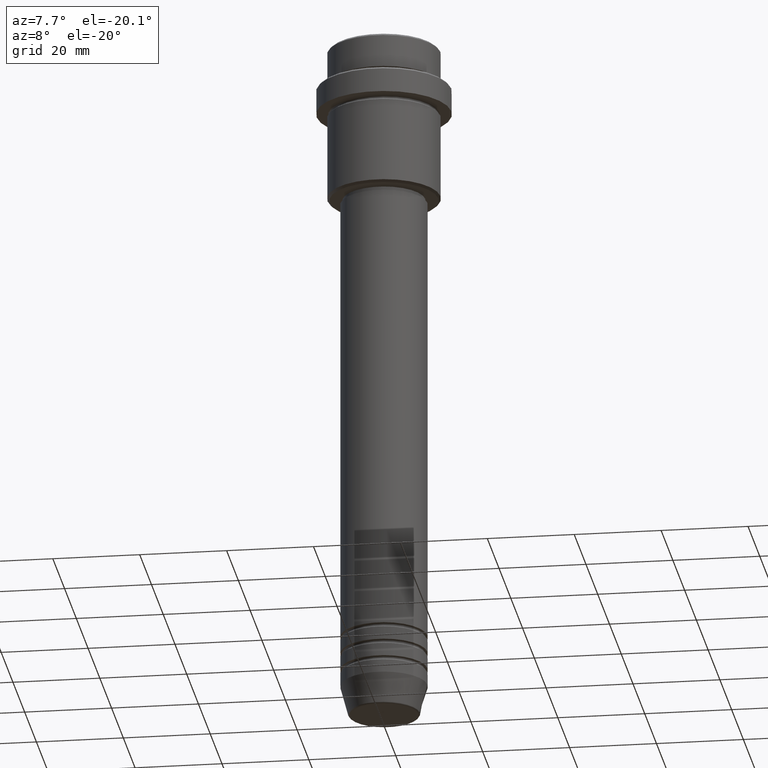
[diagram: clean part render]
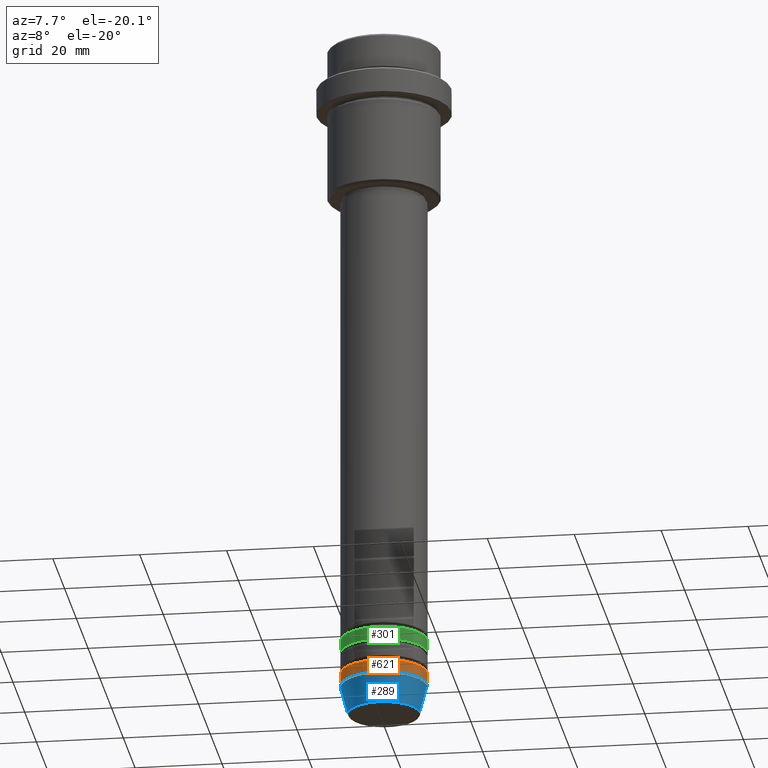
[diagram: same view with three faces highlighted in distinct colors, each labeled with its STEP entity id]
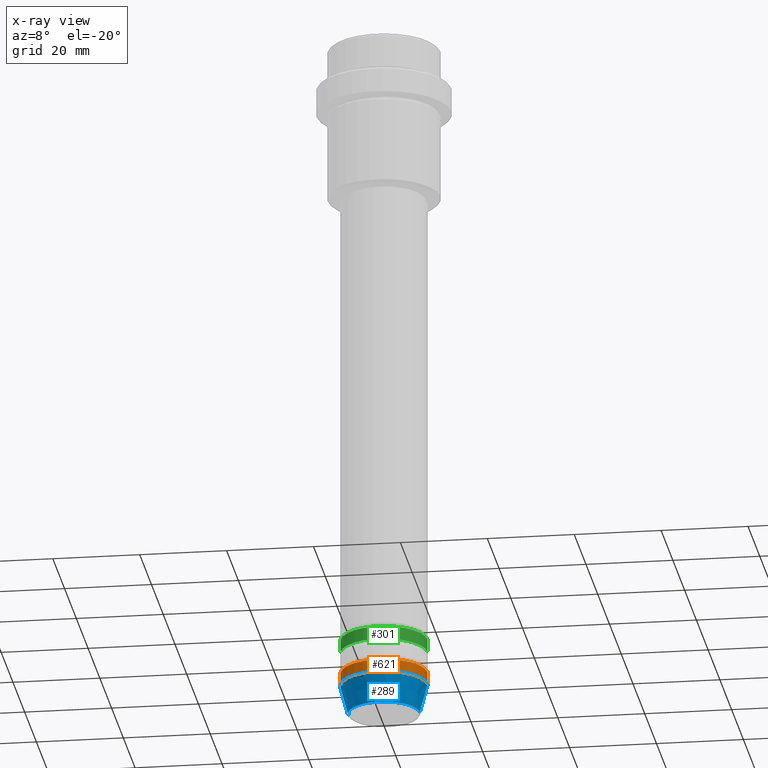
[diagram: x-ray of the same camera — body ghosted, the three highlighted faces saturated]
A machine part, auxiliary view with three faces highlighted in distinct colors.
The next image is the same camera in x-ray (body ghosted, the three faces saturated) — at least one of them is partly hidden behind the body in this view.
Their STEP definitions:

[orange] entity #621 — the highlighted cylindrical surface (partial cylindrical patch) has radius 10 mm, axis along (-0, -0, 1).
#17 = EDGE_CURVE ( 'NONE', #423, #827, #1101, .T. ) ;
#123 = DIRECTION ( 'NONE',  ( 1.000000000000000000, 0.000000000000000000, 0.000000000000000000 ) ) ;
#147 = CIRCLE ( 'NONE', #930, 10.00000000000000000 ) ;
#174 = AXIS2_PLACEMENT_3D ( 'NONE', #281, #718, #813 ) ;
#240 = DIRECTION ( 'NONE',  ( 1.000000000000000000, 0.000000000000000000, 0.000000000000000000 ) ) ;
#281 = CARTESIAN_POINT ( 'NONE',  ( 0.000000000000000000, 0.000000000000000000, -151.0000000000000000 ) ) ;
#356 = VECTOR ( 'NONE', #944, 1000.000000000000000 ) ;
#380 = VERTEX_POINT ( 'NONE', #1344 ) ;
#423 = VERTEX_POINT ( 'NONE', #743 ) ;
#463 = FACE_OUTER_BOUND ( 'NONE', #1147, .T. ) ;
#544 = VERTEX_POINT ( 'NONE', #1202 ) ;
#621 = ADVANCED_FACE ( 'NONE', ( #463 ), #885, .T. ) ;
#640 = CARTESIAN_POINT ( 'NONE',  ( -10.00000000000000000, 1.224646799147353256E-15, 0.000000000000000000 ) ) ;
#645 = VECTOR ( 'NONE', #857, 1000.000000000000000 ) ;
#681 = DIRECTION ( 'NONE',  ( -0.000000000000000000, -0.000000000000000000, 1.000000000000000000 ) ) ;
#718 = DIRECTION ( 'NONE',  ( -0.000000000000000000, -0.000000000000000000, 1.000000000000000000 ) ) ;
#743 = CARTESIAN_POINT ( 'NONE',  ( -10.00000000000000000, 1.224646799147353256E-15, -154.0000000000000000 ) ) ;
#799 = CARTESIAN_POINT ( 'NONE',  ( 0.000000000000000000, 0.000000000000000000, 0.000000000000000000 ) ) ;
#813 = DIRECTION ( 'NONE',  ( 1.000000000000000000, 0.000000000000000000, 0.000000000000000000 ) ) ;
#827 = VERTEX_POINT ( 'NONE', #1167 ) ;
#833 = EDGE_CURVE ( 'NONE', #544, #380, #949, .T. ) ;
#834 = CARTESIAN_POINT ( 'NONE',  ( 10.00000000000000000, 0.000000000000000000, 0.000000000000000000 ) ) ;
#838 = ORIENTED_EDGE ( 'NONE', *, *, #17, .F. ) ;
#857 = DIRECTION ( 'NONE',  ( -0.000000000000000000, -0.000000000000000000, 1.000000000000000000 ) ) ;
#885 = CYLINDRICAL_SURFACE ( 'NONE', #1157, 10.00000000000000000 ) ;
#930 = AXIS2_PLACEMENT_3D ( 'NONE', #1212, #1228, #240 ) ;
#944 = DIRECTION ( 'NONE',  ( -0.000000000000000000, -0.000000000000000000, 1.000000000000000000 ) ) ;
#949 = LINE ( 'NONE', #834, #645 ) ;
#955 = ORIENTED_EDGE ( 'NONE', *, *, #1105, .F. ) ;
#1040 = EDGE_CURVE ( 'NONE', #423, #544, #147, .T. ) ;
#1067 = CIRCLE ( 'NONE', #174, 10.00000000000000000 ) ;
#1080 = ORIENTED_EDGE ( 'NONE', *, *, #833, .T. ) ;
#1101 = LINE ( 'NONE', #640, #356 ) ;
#1105 = EDGE_CURVE ( 'NONE', #827, #380, #1067, .T. ) ;
#1147 = EDGE_LOOP ( 'NONE', ( #838, #1194, #1080, #955 ) ) ;
#1157 = AXIS2_PLACEMENT_3D ( 'NONE', #799, #681, #123 ) ;
#1167 = CARTESIAN_POINT ( 'NONE',  ( -10.00000000000000000, 1.224646799147353256E-15, -151.0000000000000000 ) ) ;
#1194 = ORIENTED_EDGE ( 'NONE', *, *, #1040, .T. ) ;
#1202 = CARTESIAN_POINT ( 'NONE',  ( 10.00000000000000000, 0.000000000000000000, -154.0000000000000000 ) ) ;
#1212 = CARTESIAN_POINT ( 'NONE',  ( 0.000000000000000000, 0.000000000000000000, -154.0000000000000000 ) ) ;
#1228 = DIRECTION ( 'NONE',  ( -0.000000000000000000, -0.000000000000000000, 1.000000000000000000 ) ) ;
#1344 = CARTESIAN_POINT ( 'NONE',  ( 10.00000000000000000, 0.000000000000000000, -151.0000000000000000 ) ) ;

[blue] entity #289 — the highlighted conical surface has half-angle 15 deg.
#26 = LINE ( 'NONE', #1254, #202 ) ;
#53 = EDGE_LOOP ( 'NONE', ( #957, #77, #1042, #920 ) ) ;
#77 = ORIENTED_EDGE ( 'NONE', *, *, #1275, .T. ) ;
#86 = DIRECTION ( 'NONE',  ( 1.000000000000000000, 0.000000000000000000, 0.000000000000000000 ) ) ;
#147 = CIRCLE ( 'NONE', #930, 10.00000000000000000 ) ;
#202 = VECTOR ( 'NONE', #262, 1000.000000000000114 ) ;
#240 = DIRECTION ( 'NONE',  ( 1.000000000000000000, 0.000000000000000000, 0.000000000000000000 ) ) ;
#262 = DIRECTION ( 'NONE',  ( -0.2588190451025215721, 3.169619151431775418E-17, 0.9659258262890679791 ) ) ;
#282 = EDGE_CURVE ( 'NONE', #432, #544, #627, .T. ) ;
#289 = ADVANCED_FACE ( 'NONE', ( #770 ), #548, .T. ) ;
#322 = CARTESIAN_POINT ( 'NONE',  ( 0.000000000000000000, 0.000000000000000000, -160.6294095225512137 ) ) ;
#385 = AXIS2_PLACEMENT_3D ( 'NONE', #434, #1206, #86 ) ;
#423 = VERTEX_POINT ( 'NONE', #743 ) ;
#432 = VERTEX_POINT ( 'NONE', #961 ) ;
#434 = CARTESIAN_POINT ( 'NONE',  ( 0.000000000000000000, 0.000000000000000000, -154.0000000000000000 ) ) ;
#486 = CIRCLE ( 'NONE', #1364, 8.223655072137200150 ) ;
#529 = DIRECTION ( 'NONE',  ( -0.000000000000000000, -0.000000000000000000, 1.000000000000000000 ) ) ;
#544 = VERTEX_POINT ( 'NONE', #1202 ) ;
#548 = CONICAL_SURFACE ( 'NONE', #385, 10.00000000000000000, 0.2617993877991502960 ) ;
#627 = LINE ( 'NONE', #1125, #773 ) ;
#701 = CARTESIAN_POINT ( 'NONE',  ( -8.223655072137200150, 1.115877042642912645E-15, -160.6294095225512137 ) ) ;
#710 = VERTEX_POINT ( 'NONE', #701 ) ;
#743 = CARTESIAN_POINT ( 'NONE',  ( -10.00000000000000000, 1.224646799147353256E-15, -154.0000000000000000 ) ) ;
#770 = FACE_OUTER_BOUND ( 'NONE', #53, .T. ) ;
#773 = VECTOR ( 'NONE', #788, 1000.000000000000114 ) ;
#788 = DIRECTION ( 'NONE',  ( 0.2588190451025215721, 0.000000000000000000, 0.9659258262890679791 ) ) ;
#832 = DIRECTION ( 'NONE',  ( 1.000000000000000000, 0.000000000000000000, 0.000000000000000000 ) ) ;
#920 = ORIENTED_EDGE ( 'NONE', *, *, #1040, .F. ) ;
#930 = AXIS2_PLACEMENT_3D ( 'NONE', #1212, #1228, #240 ) ;
#957 = ORIENTED_EDGE ( 'NONE', *, *, #1159, .F. ) ;
#961 = CARTESIAN_POINT ( 'NONE',  ( 8.223655072137200150, 0.000000000000000000, -160.6294095225512137 ) ) ;
#1040 = EDGE_CURVE ( 'NONE', #423, #544, #147, .T. ) ;
#1042 = ORIENTED_EDGE ( 'NONE', *, *, #282, .T. ) ;
#1125 = CARTESIAN_POINT ( 'NONE',  ( 10.00000000000000000, 0.000000000000000000, -154.0000000000000000 ) ) ;
#1159 = EDGE_CURVE ( 'NONE', #710, #423, #26, .T. ) ;
#1202 = CARTESIAN_POINT ( 'NONE',  ( 10.00000000000000000, 0.000000000000000000, -154.0000000000000000 ) ) ;
#1206 = DIRECTION ( 'NONE',  ( -0.000000000000000000, -0.000000000000000000, 1.000000000000000000 ) ) ;
#1212 = CARTESIAN_POINT ( 'NONE',  ( 0.000000000000000000, 0.000000000000000000, -154.0000000000000000 ) ) ;
#1228 = DIRECTION ( 'NONE',  ( -0.000000000000000000, -0.000000000000000000, 1.000000000000000000 ) ) ;
#1254 = CARTESIAN_POINT ( 'NONE',  ( -10.00000000000000000, 1.224646799147353256E-15, -154.0000000000000000 ) ) ;
#1275 = EDGE_CURVE ( 'NONE', #710, #432, #486, .T. ) ;
#1364 = AXIS2_PLACEMENT_3D ( 'NONE', #322, #529, #832 ) ;

[green] entity #301 — the highlighted cylindrical surface (partial cylindrical patch) has radius 10 mm, axis along (-0, -0, 1).
#46 = DIRECTION ( 'NONE',  ( 1.000000000000000000, 0.000000000000000000, 0.000000000000000000 ) ) ;
#148 = EDGE_CURVE ( 'NONE', #1360, #729, #769, .T. ) ;
#151 = CARTESIAN_POINT ( 'NONE',  ( 0.000000000000000000, 0.000000000000000000, -142.9999999999999147 ) ) ;
#184 = VERTEX_POINT ( 'NONE', #379 ) ;
#194 = VECTOR ( 'NONE', #1144, 1000.000000000000000 ) ;
#214 = FACE_OUTER_BOUND ( 'NONE', #417, .T. ) ;
#230 = CARTESIAN_POINT ( 'NONE',  ( 0.000000000000000000, 0.000000000000000000, 0.000000000000000000 ) ) ;
#254 = ORIENTED_EDGE ( 'NONE', *, *, #935, .F. ) ;
#295 = CARTESIAN_POINT ( 'NONE',  ( 10.00000000000000000, 0.000000000000000000, -145.9999999999999147 ) ) ;
#301 = ADVANCED_FACE ( 'NONE', ( #214 ), #661, .T. ) ;
#351 = ORIENTED_EDGE ( 'NONE', *, *, #1127, .F. ) ;
#379 = CARTESIAN_POINT ( 'NONE',  ( -10.00000000000000000, 1.224646799147353256E-15, -142.9999999999999147 ) ) ;
#417 = EDGE_LOOP ( 'NONE', ( #254, #847, #823, #351 ) ) ;
#619 = CIRCLE ( 'NONE', #730, 10.00000000000000000 ) ;
#653 = DIRECTION ( 'NONE',  ( -0.000000000000000000, -0.000000000000000000, 1.000000000000000000 ) ) ;
#661 = CYLINDRICAL_SURFACE ( 'NONE', #727, 10.00000000000000000 ) ;
#727 = AXIS2_PLACEMENT_3D ( 'NONE', #230, #1098, #805 ) ;
#729 = VERTEX_POINT ( 'NONE', #1023 ) ;
#730 = AXIS2_PLACEMENT_3D ( 'NONE', #1173, #1395, #1388 ) ;
#751 = LINE ( 'NONE', #1181, #1015 ) ;
#769 = LINE ( 'NONE', #1090, #194 ) ;
#805 = DIRECTION ( 'NONE',  ( 1.000000000000000000, 0.000000000000000000, 0.000000000000000000 ) ) ;
#818 = CIRCLE ( 'NONE', #1389, 10.00000000000000000 ) ;
#823 = ORIENTED_EDGE ( 'NONE', *, *, #148, .T. ) ;
#847 = ORIENTED_EDGE ( 'NONE', *, *, #886, .T. ) ;
#886 = EDGE_CURVE ( 'NONE', #1333, #1360, #619, .T. ) ;
#935 = EDGE_CURVE ( 'NONE', #1333, #184, #751, .T. ) ;
#1015 = VECTOR ( 'NONE', #653, 1000.000000000000000 ) ;
#1023 = CARTESIAN_POINT ( 'NONE',  ( 10.00000000000000000, 0.000000000000000000, -142.9999999999999147 ) ) ;
#1090 = CARTESIAN_POINT ( 'NONE',  ( 10.00000000000000000, 0.000000000000000000, 0.000000000000000000 ) ) ;
#1098 = DIRECTION ( 'NONE',  ( -0.000000000000000000, -0.000000000000000000, 1.000000000000000000 ) ) ;
#1127 = EDGE_CURVE ( 'NONE', #184, #729, #818, .T. ) ;
#1144 = DIRECTION ( 'NONE',  ( -0.000000000000000000, -0.000000000000000000, 1.000000000000000000 ) ) ;
#1173 = CARTESIAN_POINT ( 'NONE',  ( 0.000000000000000000, 0.000000000000000000, -145.9999999999999147 ) ) ;
#1181 = CARTESIAN_POINT ( 'NONE',  ( -10.00000000000000000, 1.224646799147353256E-15, 0.000000000000000000 ) ) ;
#1257 = DIRECTION ( 'NONE',  ( -0.000000000000000000, -0.000000000000000000, 1.000000000000000000 ) ) ;
#1333 = VERTEX_POINT ( 'NONE', #1400 ) ;
#1360 = VERTEX_POINT ( 'NONE', #295 ) ;
#1388 = DIRECTION ( 'NONE',  ( 1.000000000000000000, 0.000000000000000000, 0.000000000000000000 ) ) ;
#1389 = AXIS2_PLACEMENT_3D ( 'NONE', #151, #1257, #46 ) ;
#1395 = DIRECTION ( 'NONE',  ( -0.000000000000000000, -0.000000000000000000, 1.000000000000000000 ) ) ;
#1400 = CARTESIAN_POINT ( 'NONE',  ( -10.00000000000000000, 1.224646799147353256E-15, -145.9999999999999147 ) ) ;